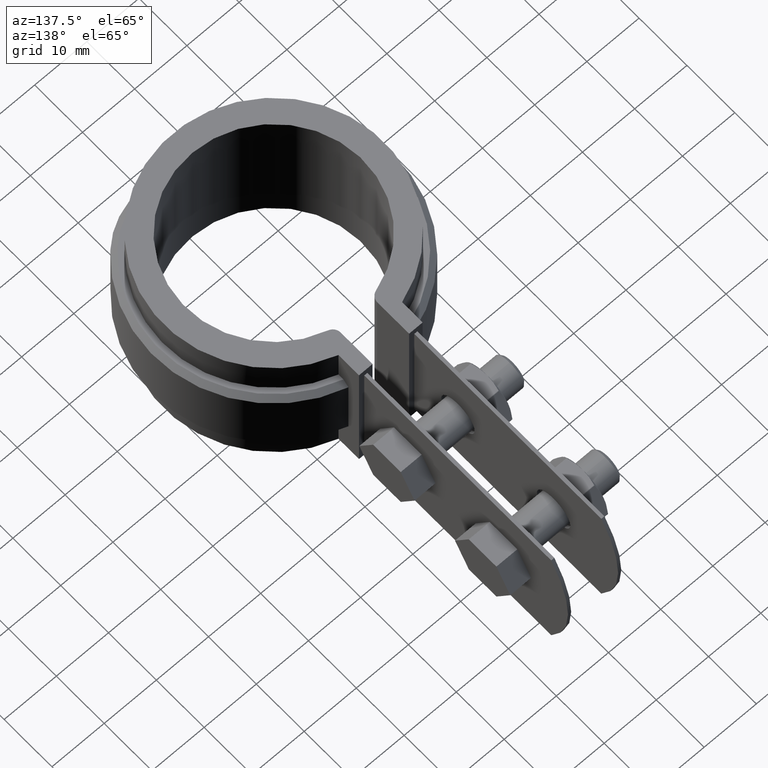
[diagram: clean part render]
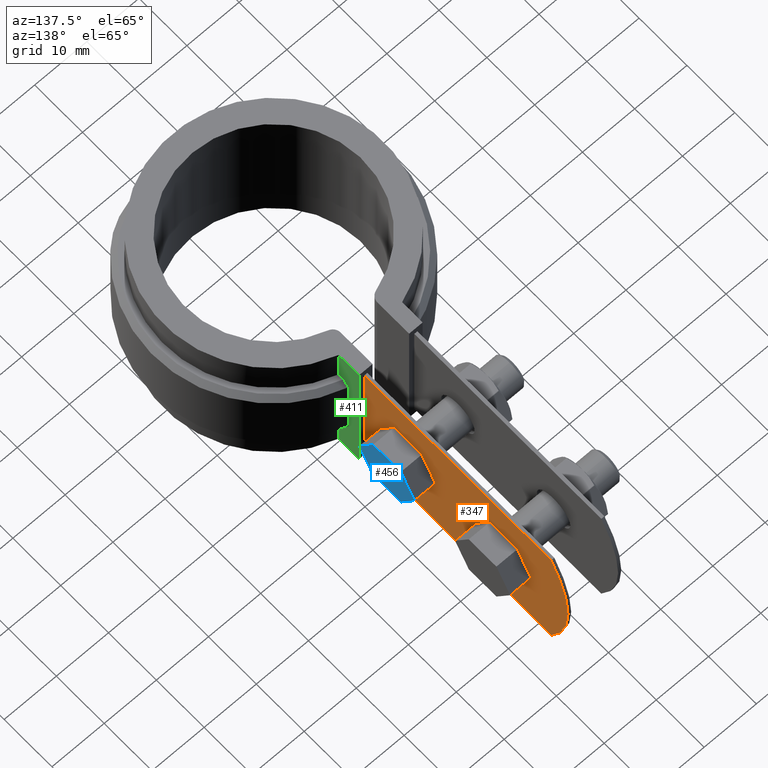
[diagram: same view with three faces highlighted in distinct colors, each labeled with its STEP entity id]
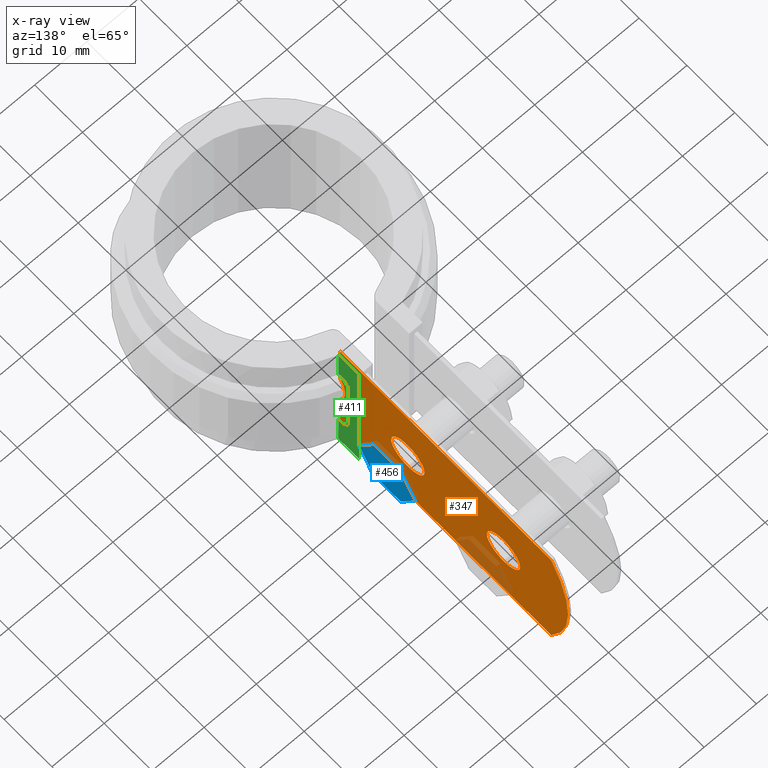
[diagram: x-ray of the same camera — body ghosted, the three highlighted faces saturated]
A machine part, auxiliary view with three faces highlighted in distinct colors.
The next image is the same camera in x-ray (body ghosted, the three faces saturated) — at least one of them is partly hidden behind the body in this view.
Their STEP definitions:

[orange] entity #347 — the highlighted planar face has unit normal (-1, 0, 0).
#347 = ADVANCED_FACE( '', ( #577, #578, #579 ), #580, .F. );
#577 = FACE_BOUND( '', #1183, .T. );
#578 = FACE_BOUND( '', #1184, .T. );
#579 = FACE_OUTER_BOUND( '', #1185, .T. );
#580 = PLANE( '', #1186 );
#1183 = EDGE_LOOP( '', ( #2356 ) );
#1184 = EDGE_LOOP( '', ( #2357 ) );
#1185 = EDGE_LOOP( '', ( #2358, #2359, #2360, #2361, #2362, #2363 ) );
#1186 = AXIS2_PLACEMENT_3D( '', #2364, #2365, #2366 );
#2356 = ORIENTED_EDGE( '', *, *, #4100, .F. );
#2357 = ORIENTED_EDGE( '', *, *, #4101, .F. );
#2358 = ORIENTED_EDGE( '', *, *, #4016, .F. );
#2359 = ORIENTED_EDGE( '', *, *, #4099, .T. );
#2360 = ORIENTED_EDGE( '', *, *, #4102, .T. );
#2361 = ORIENTED_EDGE( '', *, *, #4103, .F. );
#2362 = ORIENTED_EDGE( '', *, *, #3996, .F. );
#2363 = ORIENTED_EDGE( '', *, *, #4079, .T. );
#2364 = CARTESIAN_POINT( '', ( 5.10000000000000, 19.4422220952236, 0.000000000000000 ) );
#2365 = DIRECTION( '', ( -1.00000000000000, 6.12303176911189E-017, 0.000000000000000 ) );
#2366 = DIRECTION( '', ( 6.12303176911189E-017, 1.00000000000000, 0.000000000000000 ) );
#3996 = EDGE_CURVE( '', #4520, #4522, #4523, .T. );
#4016 = EDGE_CURVE( '', #4557, #4551, #4559, .T. );
#4079 = EDGE_CURVE( '', #4520, #4551, #4665, .T. );
#4099 = EDGE_CURVE( '', #4557, #4693, #4695, .T. );
#4100 = EDGE_CURVE( '', #4696, #4696, #4697, .F. );
#4101 = EDGE_CURVE( '', #4698, #4698, #4699, .F. );
#4102 = EDGE_CURVE( '', #4693, #4700, #4701, .T. );
#4103 = EDGE_CURVE( '', #4522, #4700, #4702, .T. );
#4520 = VERTEX_POINT( '', #5493 );
#4522 = VERTEX_POINT( '', #5495 );
#4523 = LINE( '', #5496, #5497 );
#4551 = VERTEX_POINT( '', #5600 );
#4557 = VERTEX_POINT( '', #5665 );
#4559 = B_SPLINE_CURVE_WITH_KNOTS( '', 3, ( #5680, #5681, #5682, #5683, #5684, #5685, #5686, #5687, #5688, #5689, #5690, #5691, #5692, #5693, #5694, #5695 ), .UNSPECIFIED., .F., .F., ( 4, 2, 2, 2, 2, 2, 2, 4 ), ( 0.000000000000000, 0.00184726520239939, 0.00277089780359908, 0.00369453040479878, 0.00461816300599847, 0.00554179560719817, 0.00646542820839786, 0.00738906080959756 ), .UNSPECIFIED. );
#4665 = LINE( '', #6264, #6265 );
#4693 = VERTEX_POINT( '', #6328 );
#4695 = LINE( '', #6330, #6331 );
#4696 = VERTEX_POINT( '', #6332 );
#4697 = CIRCLE( '', #6333, 3.50000000000000 );
#4698 = VERTEX_POINT( '', #6334 );
#4699 = CIRCLE( '', #6335, 3.50000000000000 );
#4700 = VERTEX_POINT( '', #6336 );
#4701 = LINE( '', #6337, #6338 );
#4702 = CIRCLE( '', #6339, 24.0000000000000 );
#5493 = CARTESIAN_POINT( '', ( 5.10000000000000, 19.4422220952236, 0.000000000000000 ) );
#5495 = CARTESIAN_POINT( '', ( 5.09999999999998, 63.5921596934742, 0.000000000000000 ) );
#5496 = CARTESIAN_POINT( '', ( 5.10000000000000, 19.4422220952236, 0.000000000000000 ) );
#5497 = VECTOR( '', #8063, 1000.00000000000 );
#5600 = CARTESIAN_POINT( '', ( 5.10000000000000, 19.4422220952236, -8.96967133656902 ) );
#5665 = CARTESIAN_POINT( '', ( 5.10000000000000, 19.4422220952236, -16.0303286634310 ) );
#5680 = CARTESIAN_POINT( '', ( 5.10000000000000, 19.4422220952236, -16.0303286634310 ) );
#5681 = CARTESIAN_POINT( '', ( 5.10000000000000, 19.7801053416469, -15.5013357464435 ) );
#5682 = CARTESIAN_POINT( '', ( 5.10000000000004, 20.0328027913763, -14.9390013586114 ) );
#5683 = CARTESIAN_POINT( '', ( 5.10000000000004, 20.2940795166056, -14.0494051599813 ) );
#5684 = CARTESIAN_POINT( '', ( 5.10000000000000, 20.3614603303200, -13.7424787248677 ) );
#5685 = CARTESIAN_POINT( '', ( 5.10000000000001, 20.4512930233971, -13.1249243719470 ) );
#5686 = CARTESIAN_POINT( '', ( 5.09999999999998, 20.4739241329096, -12.8159474315860 ) );
#5687 = CARTESIAN_POINT( '', ( 5.09999999999998, 20.4745795553676, -12.1975936974691 ) );
#5688 = CARTESIAN_POINT( '', ( 5.10000000000000, 20.4525929326976, -11.8882168056868 ) );
#5689 = CARTESIAN_POINT( '', ( 5.10000000000000, 20.3637266687302, -11.2690606030454 ) );
#5690 = CARTESIAN_POINT( '', ( 5.10000000000001, 20.2971590065117, -10.9631409781845 ) );
#5691 = CARTESIAN_POINT( '', ( 5.10000000000000, 20.1236782689653, -10.3684305159894 ) );
#5692 = CARTESIAN_POINT( '', ( 5.09999999999999, 20.0165393108588, -10.0780053806238 ) );
#5693 = CARTESIAN_POINT( '', ( 5.09999999999999, 19.7606431259462, -9.51129425361358 ) );
#5694 = CARTESIAN_POINT( '', ( 5.10000000000000, 19.6111260462182, -9.23410881511576 ) );
#5695 = CARTESIAN_POINT( '', ( 5.10000000000000, 19.4422220952235, -8.96967133656902 ) );
#6264 = CARTESIAN_POINT( '', ( 5.10000000000000, 19.4422220952236, 0.000000000000000 ) );
#6265 = VECTOR( '', #8134, 1000.00000000000 );
#6328 = CARTESIAN_POINT( '', ( 5.10000000000000, 19.4422220952236, -25.0000000000000 ) );
#6330 = CARTESIAN_POINT( '', ( 5.10000000000000, 19.4422220952236, 0.000000000000000 ) );
#6331 = VECTOR( '', #8169, 1000.00000000000 );
#6332 = CARTESIAN_POINT( '', ( 5.10000000000000, 50.1043584449263, -12.5000000000000 ) );
#6333 = AXIS2_PLACEMENT_3D( '', #8170, #8171, #8172 );
#6334 = CARTESIAN_POINT( '', ( 5.10000000000000, 30.1043584449263, -12.5000000000000 ) );
#6335 = AXIS2_PLACEMENT_3D( '', #8173, #8174, #8175 );
#6336 = CARTESIAN_POINT( '', ( 5.09999999999998, 63.5921596934743, -25.0000000000000 ) );
#6337 = CARTESIAN_POINT( '', ( 5.10000000000000, 19.4422220952236, -25.0000000000000 ) );
#6338 = VECTOR( '', #8176, 1000.00000000000 );
#6339 = AXIS2_PLACEMENT_3D( '', #8177, #8178, #8179 );
#8063 = DIRECTION( '', ( 6.12303176911189E-017, 1.00000000000000, 0.000000000000000 ) );
#8134 = DIRECTION( '', ( 0.000000000000000, 0.000000000000000, -1.00000000000000 ) );
#8169 = DIRECTION( '', ( 0.000000000000000, 0.000000000000000, -1.00000000000000 ) );
#8170 = CARTESIAN_POINT( '', ( 5.10000000000000, 53.6043584449263, -12.5000000000000 ) );
#8171 = DIRECTION( '', ( -1.00000000000000, 6.12303176911189E-017, 0.000000000000000 ) );
#8172 = DIRECTION( '', ( -6.12303176911189E-017, -1.00000000000000, 0.000000000000000 ) );
#8173 = CARTESIAN_POINT( '', ( 5.10000000000000, 33.6043584449263, -12.5000000000000 ) );
#8174 = DIRECTION( '', ( -1.00000000000000, 6.12303176911189E-017, 0.000000000000000 ) );
#8175 = DIRECTION( '', ( -6.12303176911189E-017, -1.00000000000000, 0.000000000000000 ) );
#8176 = DIRECTION( '', ( 6.12303176911189E-017, 1.00000000000000, 0.000000000000000 ) );
#8177 = CARTESIAN_POINT( '', ( 5.10000000000001, 43.1043584449263, -12.5000000000000 ) );
#8178 = DIRECTION( '', ( -1.00000000000000, 6.12303176911189E-017, 0.000000000000000 ) );
#8179 = DIRECTION( '', ( -6.12303176911189E-017, -1.00000000000000, 0.000000000000000 ) );

[blue] entity #456 — the highlighted planar face has unit normal (-1, 0, 0).
#456 = ADVANCED_FACE( '', ( #810 ), #811, .F. );
#810 = FACE_OUTER_BOUND( '', #1608, .T. );
#811 = PLANE( '', #1609 );
#1608 = EDGE_LOOP( '', ( #3593, #3594, #3595, #3596, #3597, #3598 ) );
#1609 = AXIS2_PLACEMENT_3D( '', #3599, #3600, #3601 );
#3593 = ORIENTED_EDGE( '', *, *, #4365, .T. );
#3594 = ORIENTED_EDGE( '', *, *, #4368, .T. );
#3595 = ORIENTED_EDGE( '', *, *, #4371, .T. );
#3596 = ORIENTED_EDGE( '', *, *, #4372, .T. );
#3597 = ORIENTED_EDGE( '', *, *, #4373, .T. );
#3598 = ORIENTED_EDGE( '', *, *, #4374, .T. );
#3599 = CARTESIAN_POINT( '', ( 9.10000000000000, 24.9441044070819, -17.5000000000000 ) );
#3600 = DIRECTION( '', ( -1.00000000000000, 0.000000000000000, 0.000000000000000 ) );
#3601 = DIRECTION( '', ( 0.000000000000000, 0.000000000000000, 1.00000000000000 ) );
#4365 = EDGE_CURVE( '', #5134, #5132, #5135, .T. );
#4368 = EDGE_CURVE( '', #5132, #5137, #5139, .T. );
#4371 = EDGE_CURVE( '', #5137, #5144, #5145, .T. );
#4372 = EDGE_CURVE( '', #5144, #5146, #5147, .T. );
#4373 = EDGE_CURVE( '', #5146, #5148, #5149, .T. );
#4374 = EDGE_CURVE( '', #5148, #5134, #5150, .T. );
#5132 = VERTEX_POINT( '', #7676 );
#5134 = VERTEX_POINT( '', #7679 );
#5135 = LINE( '', #7680, #7681 );
#5137 = VERTEX_POINT( '', #7684 );
#5139 = LINE( '', #7687, #7688 );
#5144 = VERTEX_POINT( '', #7693 );
#5145 = LINE( '', #7694, #7695 );
#5146 = VERTEX_POINT( '', #7696 );
#5147 = LINE( '', #7697, #7698 );
#5148 = VERTEX_POINT( '', #7699 );
#5149 = LINE( '', #7700, #7701 );
#5150 = LINE( '', #7702, #7703 );
#7676 = CARTESIAN_POINT( '', ( 9.10000000000000, 36.4911097908745, -17.5000000000000 ) );
#7679 = CARTESIAN_POINT( '', ( 9.10000000000000, 30.7176070989782, -17.5000000000000 ) );
#7680 = CARTESIAN_POINT( '', ( 9.10000000000000, 30.7176070989782, -17.5000000000000 ) );
#7681 = VECTOR( '', #8515, 1000.00000000000 );
#7684 = CARTESIAN_POINT( '', ( 9.10000000000000, 39.3778611368226, -12.5000000000000 ) );
#7687 = CARTESIAN_POINT( '', ( 9.10000000000000, 36.4911097908745, -17.5000000000000 ) );
#7688 = VECTOR( '', #8518, 1000.00000000000 );
#7693 = CARTESIAN_POINT( '', ( 9.10000000000000, 36.4911097908745, -7.50000000000000 ) );
#7694 = CARTESIAN_POINT( '', ( 9.10000000000000, 39.3778611368226, -12.5000000000000 ) );
#7695 = VECTOR( '', #8525, 1000.00000000000 );
#7696 = CARTESIAN_POINT( '', ( 9.10000000000000, 30.7176070989782, -7.50000000000000 ) );
#7697 = CARTESIAN_POINT( '', ( 9.10000000000000, 36.4911097908745, -7.50000000000000 ) );
#7698 = VECTOR( '', #8526, 1000.00000000000 );
#7699 = CARTESIAN_POINT( '', ( 9.10000000000000, 27.8308557530301, -12.5000000000000 ) );
#7700 = CARTESIAN_POINT( '', ( 9.10000000000000, 30.7176070989782, -7.50000000000000 ) );
#7701 = VECTOR( '', #8527, 1000.00000000000 );
#7702 = CARTESIAN_POINT( '', ( 9.10000000000000, 27.8308557530301, -12.5000000000000 ) );
#7703 = VECTOR( '', #8528, 1000.00000000000 );
#8515 = DIRECTION( '', ( 0.000000000000000, 1.00000000000000, -3.00462919747431E-016 ) );
#8518 = DIRECTION( '', ( 0.000000000000000, 0.500000000000000, 0.866025403784439 ) );
#8525 = DIRECTION( '', ( 0.000000000000000, -0.500000000000000, 0.866025403784439 ) );
#8526 = DIRECTION( '', ( 0.000000000000000, -1.00000000000000, 0.000000000000000 ) );
#8527 = DIRECTION( '', ( 0.000000000000000, -0.500000000000000, -0.866025403784439 ) );
#8528 = DIRECTION( '', ( 0.000000000000000, 0.500000000000000, -0.866025403784439 ) );

[green] entity #411 — the highlighted planar face has unit normal (1, -0, 0).
#411 = ADVANCED_FACE( '', ( #714 ), #715, .T. );
#714 = FACE_OUTER_BOUND( '', #1512, .T. );
#715 = PLANE( '', #1513 );
#1512 = EDGE_LOOP( '', ( #3266, #3267, #3268, #3269, #3270, #3271, #3272, #3273, #3274, #3275 ) );
#1513 = AXIS2_PLACEMENT_3D( '', #3276, #3277, #3278 );
#3266 = ORIENTED_EDGE( '', *, *, #4302, .F. );
#3267 = ORIENTED_EDGE( '', *, *, #4303, .T. );
#3268 = ORIENTED_EDGE( '', *, *, #4304, .F. );
#3269 = ORIENTED_EDGE( '', *, *, #4283, .F. );
#3270 = ORIENTED_EDGE( '', *, *, #4305, .T. );
#3271 = ORIENTED_EDGE( '', *, *, #4118, .T. );
#3272 = ORIENTED_EDGE( '', *, *, #4306, .F. );
#3273 = ORIENTED_EDGE( '', *, *, #4291, .F. );
#3274 = ORIENTED_EDGE( '', *, *, #4307, .T. );
#3275 = ORIENTED_EDGE( '', *, *, #4308, .T. );
#3276 = CARTESIAN_POINT( '', ( 6.09999999999997, 20.1937867919813, -26.5000000000000 ) );
#3277 = DIRECTION( '', ( 1.00000000000000, -6.50521303491303E-017, 0.000000000000000 ) );
#3278 = DIRECTION( '', ( -6.50521303491303E-017, -1.00000000000000, 0.000000000000000 ) );
#4118 = EDGE_CURVE( '', #4723, #4721, #4724, .T. );
#4283 = EDGE_CURVE( '', #5002, #5004, #5005, .T. );
#4291 = EDGE_CURVE( '', #5018, #5020, #5021, .T. );
#4302 = EDGE_CURVE( '', #5036, #5037, #5038, .T. );
#4303 = EDGE_CURVE( '', #5036, #5039, #5040, .T. );
#4304 = EDGE_CURVE( '', #5004, #5039, #5041, .T. );
#4305 = EDGE_CURVE( '', #5002, #4723, #5042, .T. );
#4306 = EDGE_CURVE( '', #5020, #4721, #5043, .T. );
#4307 = EDGE_CURVE( '', #5018, #5044, #5045, .T. );
#4308 = EDGE_CURVE( '', #5044, #5037, #5046, .T. );
#4721 = VERTEX_POINT( '', #6366 );
#4723 = VERTEX_POINT( '', #6369 );
#4724 = LINE( '', #6370, #6371 );
#5002 = VERTEX_POINT( '', #7476 );
#5004 = VERTEX_POINT( '', #7478 );
#5005 = LINE( '', #7479, #7480 );
#5018 = VERTEX_POINT( '', #7500 );
#5020 = VERTEX_POINT( '', #7502 );
#5021 = LINE( '', #7503, #7504 );
#5036 = VERTEX_POINT( '', #7530 );
#5037 = VERTEX_POINT( '', #7531 );
#5038 = LINE( '', #7532, #7533 );
#5039 = VERTEX_POINT( '', #7534 );
#5040 = B_SPLINE_CURVE_WITH_KNOTS( '', 3, ( #7535, #7536, #7537, #7538 ), .UNSPECIFIED., .F., .F., ( 4, 4 ), ( 2.22152998685417E-017, 0.00144175553964643 ), .UNSPECIFIED. );
#5041 = LINE( '', #7539, #7540 );
#5042 = LINE( '', #7541, #7542 );
#5043 = LINE( '', #7543, #7544 );
#5044 = VERTEX_POINT( '', #7545 );
#5045 = LINE( '', #7546, #7547 );
#5046 = B_SPLINE_CURVE_WITH_KNOTS( '', 3, ( #7548, #7549, #7550, #7551 ), .UNSPECIFIED., .F., .F., ( 4, 4 ), ( 0.000000000000000, 0.00144175553964640 ), .UNSPECIFIED. );
#6366 = CARTESIAN_POINT( '', ( 6.09999999999997, 24.4800000000000, 1.50000000000000 ) );
#6369 = CARTESIAN_POINT( '', ( 6.09999999999997, 24.4800000000000, -26.5000000000000 ) );
#6370 = CARTESIAN_POINT( '', ( 6.09999999999997, 24.4800000000000, -26.5000000000000 ) );
#6371 = VECTOR( '', #8204, 1000.00000000000 );
#7476 = CARTESIAN_POINT( '', ( 6.09999999999997, 20.1937867919813, -26.5000000000000 ) );
#7478 = CARTESIAN_POINT( '', ( 6.09999999999997, 20.1937867919813, -20.0000000000000 ) );
#7479 = CARTESIAN_POINT( '', ( 6.09999999999997, 20.1937867919813, -26.5000000000000 ) );
#7480 = VECTOR( '', #8396, 1000.00000000000 );
#7500 = CARTESIAN_POINT( '', ( 6.09999999999998, 20.1937867919813, -5.00000000000000 ) );
#7502 = CARTESIAN_POINT( '', ( 6.09999999999997, 20.1937867919813, 1.50000000000000 ) );
#7503 = CARTESIAN_POINT( '', ( 6.09999999999997, 20.1937867919813, -26.5000000000000 ) );
#7504 = VECTOR( '', #8410, 1000.00000000000 );
#7530 = CARTESIAN_POINT( '', ( 6.09999999999997, 22.2748518513592, -19.0000000000000 ) );
#7531 = CARTESIAN_POINT( '', ( 6.09999999999997, 22.2748518513592, -6.00000000000001 ) );
#7532 = CARTESIAN_POINT( '', ( 6.09999999999997, 22.2748518513592, -20.0000000000000 ) );
#7533 = VECTOR( '', #8422, 1000.00000000000 );
#7534 = CARTESIAN_POINT( '', ( 6.09999999999997, 21.2362667387655, -20.0000000000000 ) );
#7535 = CARTESIAN_POINT( '', ( 6.09999999999998, 22.2748518513592, -19.0000000000000 ) );
#7536 = CARTESIAN_POINT( '', ( 6.09999999999998, 21.9289403275758, -19.3336275360880 ) );
#7537 = CARTESIAN_POINT( '', ( 6.09999999999997, 21.5827583504448, -19.6669749586619 ) );
#7538 = CARTESIAN_POINT( '', ( 6.09999999999997, 21.2362667387655, -20.0000000000000 ) );
#7539 = CARTESIAN_POINT( '', ( 6.09999999999997, 20.1937867919813, -20.0000000000000 ) );
#7540 = VECTOR( '', #8423, 1000.00000000000 );
#7541 = CARTESIAN_POINT( '', ( 6.09999999999997, 20.1937867919813, -26.5000000000000 ) );
#7542 = VECTOR( '', #8424, 1000.00000000000 );
#7543 = CARTESIAN_POINT( '', ( 6.09999999999997, 20.1937867919813, 1.50000000000000 ) );
#7544 = VECTOR( '', #8425, 1000.00000000000 );
#7545 = CARTESIAN_POINT( '', ( 6.09999999999997, 21.2362667387655, -5.00000000000000 ) );
#7546 = CARTESIAN_POINT( '', ( 6.09999999999997, 20.1937867919813, -5.00000000000000 ) );
#7547 = VECTOR( '', #8426, 1000.00000000000 );
#7548 = CARTESIAN_POINT( '', ( 6.09999999999997, 21.2362667387655, -5.00000000000000 ) );
#7549 = CARTESIAN_POINT( '', ( 6.09999999999997, 21.5827583504448, -5.33302504133812 ) );
#7550 = CARTESIAN_POINT( '', ( 6.09999999999997, 21.9289403275758, -5.66637246391195 ) );
#7551 = CARTESIAN_POINT( '', ( 6.09999999999997, 22.2748518513592, -6.00000000000000 ) );
#8204 = DIRECTION( '', ( 0.000000000000000, 0.000000000000000, 1.00000000000000 ) );
#8396 = DIRECTION( '', ( 0.000000000000000, 0.000000000000000, 1.00000000000000 ) );
#8410 = DIRECTION( '', ( 0.000000000000000, 0.000000000000000, 1.00000000000000 ) );
#8422 = DIRECTION( '', ( 0.000000000000000, 0.000000000000000, 1.00000000000000 ) );
#8423 = DIRECTION( '', ( 1.11022302462516E-016, 1.00000000000000, 0.000000000000000 ) );
#8424 = DIRECTION( '', ( 6.50521303491303E-017, 1.00000000000000, 0.000000000000000 ) );
#8425 = DIRECTION( '', ( 6.50521303491303E-017, 1.00000000000000, 0.000000000000000 ) );
#8426 = DIRECTION( '', ( 1.11022302462516E-016, 1.00000000000000, 0.000000000000000 ) );